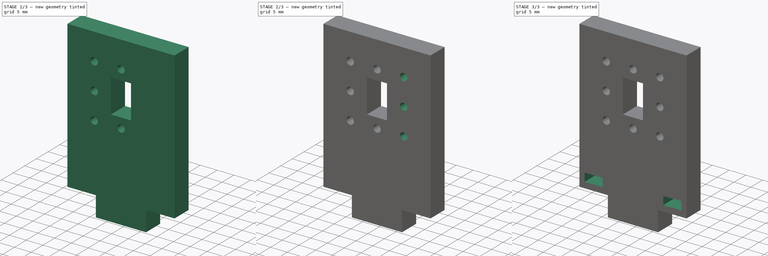
[diagram: build sequence overview — one tinted view per stage of 3, left to right]
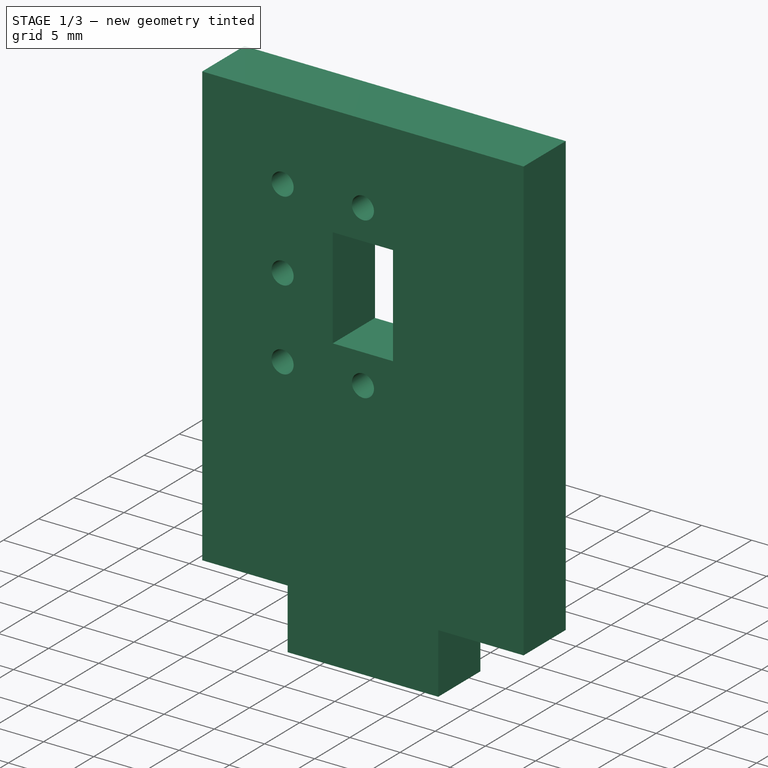
[diagram: stage 1 of 3 — iso view after this stage's code; geometry added in this stage tinted green]
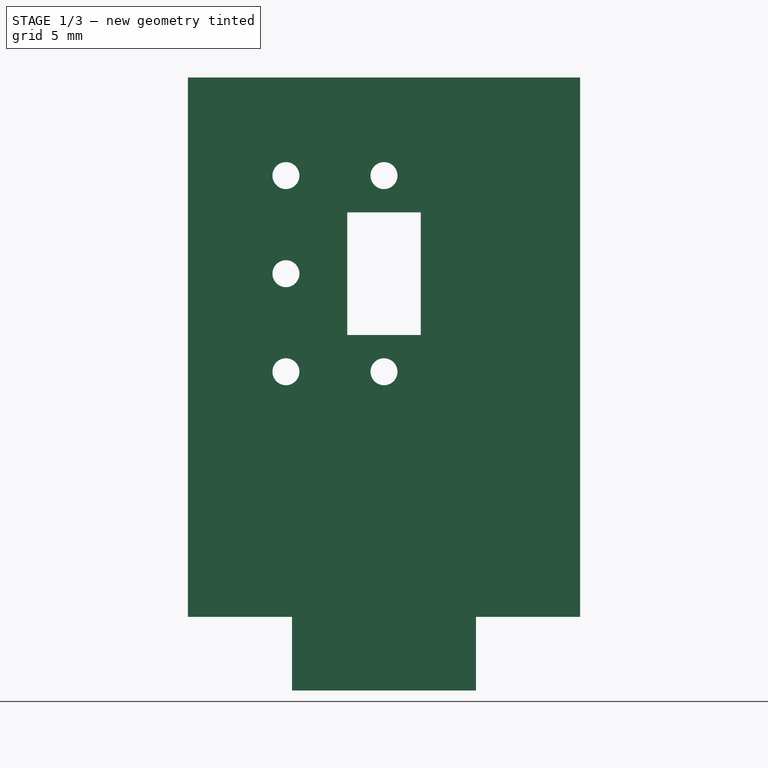
[diagram: stage 1 of 3 — front view after this stage's code; geometry added in this stage tinted green]
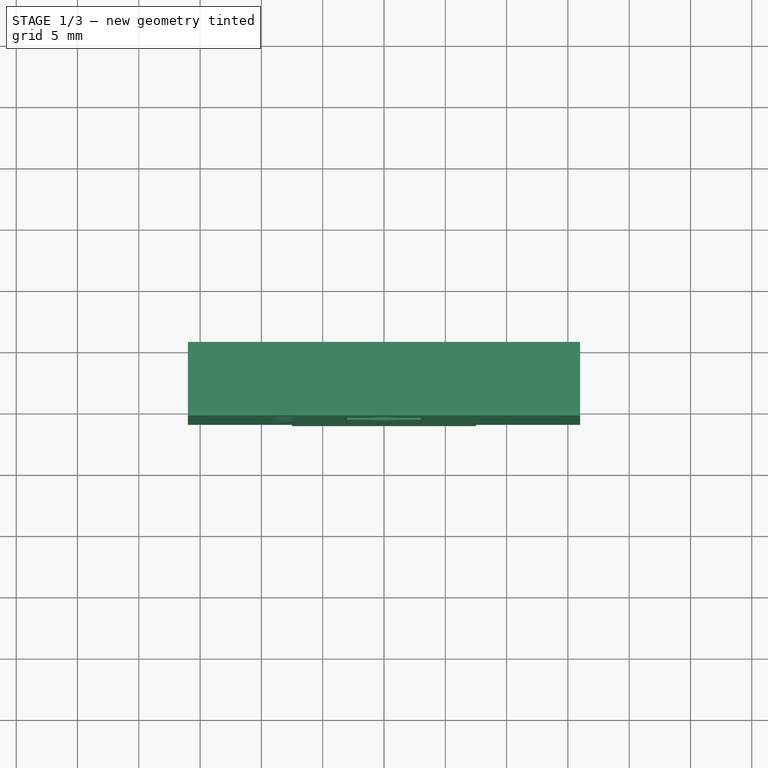
[diagram: stage 1 of 3 — top view after this stage's code; geometry added in this stage tinted green]
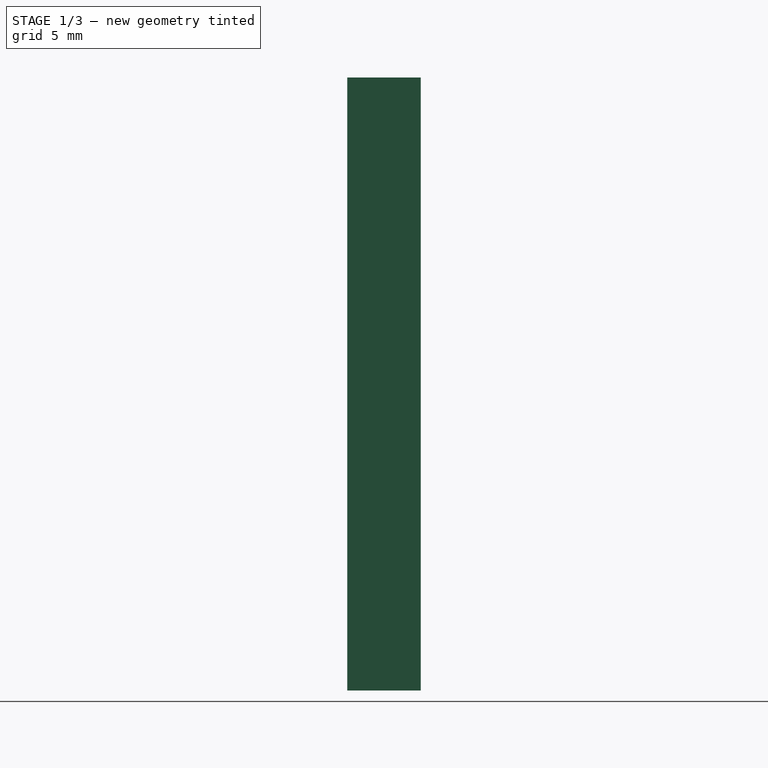
[diagram: stage 1 of 3 — right view after this stage's code; geometry added in this stage tinted green]
FCSTD DOCUMENT  (FreeCAD 0.19R24291 (Git))
Label: Support-AX12-Lidar
License: All rights reserved
LicenseURL: http://en.wikipedia.org/wiki/All_rights_reserved
objects: Sketcher::SketchObject×3, PartDesign::Pocket×2, PartDesign::Mirrored×2, PartDesign::Pad×1, PartDesign::Body×1
note: 12 computed .brp shape members not serialized (recipe doc carries the construction recipe); baked Part::Feature solids carry a one-line shape summary decoded from their .brp

FEATURE [Sketcher::SketchObject] Sketch
  FullyConstrained = true
  MapMode = 5
  Placement = pos=(0,0,0) rot=(1,0,0;1.5708rad)
  Support = -> [XZ_Plane]
  sketch-geometry (12):
    g0: LineSegment StartX=-16 StartY=-22 StartZ=0 EndX=16 EndY=-22 EndZ=0
    g1: LineSegment StartX=16 StartY=-22 StartZ=0 EndX=16 EndY=22 EndZ=0
    g2: LineSegment StartX=16 StartY=22 StartZ=0 EndX=-16 EndY=22 EndZ=0
    g3: LineSegment StartX=-16 StartY=22 StartZ=0 EndX=-16 EndY=-22 EndZ=0
    g4: LineSegment StartX=-16 StartY=-22 StartZ=0 EndX=16 EndY=22 EndZ=0
    g5: LineSegment StartX=-16 StartY=22 StartZ=0 EndX=16 EndY=-22 EndZ=0
    g6: LineSegment StartX=-7.5 StartY=-22 StartZ=0 EndX=7.5 EndY=-22 EndZ=0
    g7: LineSegment StartX=7.5 StartY=-22 StartZ=0 EndX=7.5 EndY=-28 EndZ=0
    g8: LineSegment StartX=7.5 StartY=-28 StartZ=0 EndX=-7.5 EndY=-28 EndZ=0
    g9: LineSegment StartX=-7.5 StartY=-28 StartZ=0 EndX=-7.5 EndY=-22 EndZ=0
    g10: LineSegment StartX=-16 StartY=-22 StartZ=0 EndX=-7.5 EndY=-22 EndZ=0
    g11: LineSegment StartX=7.5 StartY=-22 StartZ=0 EndX=16 EndY=-22 EndZ=0
  constraints (31):
    c: Coincident(g0,g1)
    c: Coincident(g1,g2)
    c: Coincident(g2,g3)
    c: Coincident(g3,g0)
    c: Horizontal(g0)
    c: Horizontal(g2)
    c: Vertical(g1)
    c: Vertical(g3)
    c: Coincident(g4,g0)
    c: Coincident(g4,g1)
    c: Coincident(g5,g2)
    c: Coincident(g5,g0)
    c: PointOnObject(g-1,g4)
    c: PointOnObject(g-1,g5)
    c: DistanceX(g2,g2) = 32
    c: DistanceY(g1,g1) = 44
    c: Coincident(g6,g7)
    c: Coincident(g7,g8)
    c: Coincident(g8,g9)
    c: Coincident(g9,g6)
    c: Horizontal(g8)
    c: Vertical(g7)
    c: Vertical(g9)
    c: PointOnObject(g6,g0)
    c: Symmetric(g6,g6,g-2)
    c: DistanceY(g7,g7) = 6
    c: DistanceX(g8,g8) = 15
    c: Coincident(g10,g3)
    c: Coincident(g10,g6)
    c: Coincident(g11,g7)
    c: Coincident(g11,g1)
FEATURE [PartDesign::Pad] Pad  label="Base"
  Direction = (1,1,1)
  Length = 6
  Length2 = 100
  Placement = pos=(0,0,0) rot=(1,0,0;1.5708rad)
  Profile = -> Sketch
  Type = 0
FEATURE [Sketcher::SketchObject] Sketch001
  ExternalGeometry = -> [Pad]
  FullyConstrained = true
  MapMode = 5
  Placement = pos=(0,-6,4e-15) rot=(1,0,0;1.5708rad)
  Support = -> [Pad]
  sketch-geometry (12):
    g0: LineSegment StartX=-3 StartY=1 StartZ=0 EndX=3 EndY=1 EndZ=0
    g1: LineSegment StartX=3 StartY=1 StartZ=0 EndX=3 EndY=11 EndZ=0
    g2: LineSegment StartX=3 StartY=11 StartZ=0 EndX=-3 EndY=11 EndZ=0
    g3: LineSegment StartX=-3 StartY=11 StartZ=0 EndX=-3 EndY=1 EndZ=0
    g4: LineSegment StartX=-3 StartY=11 StartZ=0 EndX=3 EndY=1 EndZ=0
    g5: LineSegment StartX=-3 StartY=1 StartZ=0 EndX=3 EndY=11 EndZ=0
    g6: GeomPoint X=0 Y=6 Z=0
    g7: Circle CenterX=0 CenterY=14 CenterZ=0 NormalX=0 NormalY=0 NormalZ=1 AngleXU=0 Radius=1.1
    g8: Circle CenterX=-8 CenterY=6 CenterZ=0 NormalX=0 NormalY=0 NormalZ=1 AngleXU=0 Radius=1.1
    g9: Circle CenterX=-8 CenterY=14 CenterZ=0 NormalX=0 NormalY=0 NormalZ=1 AngleXU=0 Radius=1.1
    g10: Circle CenterX=-8 CenterY=-2 CenterZ=0 NormalX=0 NormalY=0 NormalZ=1 AngleXU=0 Radius=1.1
    g11: Circle CenterX=0 CenterY=-2 CenterZ=0 NormalX=0 NormalY=0 NormalZ=1 AngleXU=0 Radius=1.1
  constraints (32):
    c: Coincident(g0,g1)
    c: Coincident(g1,g2)
    c: Coincident(g2,g3)
    c: Coincident(g3,g0)
    c: Horizontal(g0)
    c: Vertical(g1)
    c: Vertical(g3)
    c: DistanceY(g1,g1) = 10
    c: DistanceX(g2,g2) = 6
    c: Symmetric(g2,g1,g-2)
    c: Coincident(g4,g2)
    c: Coincident(g4,g0)
    c: Coincident(g5,g0)
    c: Coincident(g5,g1)
    c: PointOnObject(g6,g-2)
    c: PointOnObject(g6,g5)
    c: DistanceY(g6,g-3) = 16
    c: PointOnObject(g7,g-2)
    c: Radius(g7) = 1.1
    c: Equal(g7,g8)
    c: Horizontal(g6,g8)
    c: DistanceX(g8,g6) = 8
    c: Equal(g7,g9)
    c: Horizontal(g9,g7)
    c: Vertical(g9,g8)
    c: DistanceY(g8,g9) = 8
    c: PointOnObject(g11,g-2)
    c: Equal(g10,g11)
    c: Equal(g11,g8)
    c: Vertical(g10,g8)
    c: Horizontal(g10,g11)
    c: DistanceY(g11,g6) = 8
FEATURE [PartDesign::Pocket] Pocket  label="Fixation"
  BaseFeature = -> Pad
  Length = 5
  Length2 = 100
  Placement = pos=(0,0,0) rot=(1,0,0;1.5708rad)
  Profile = -> Sketch001
  Type = 1
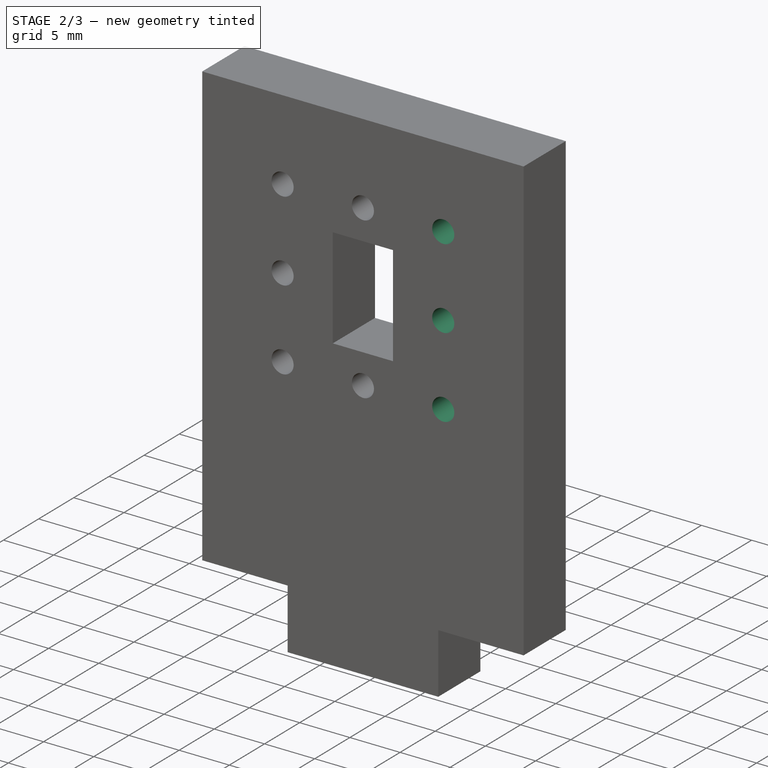
[diagram: stage 2 of 3 — iso view after this stage's code; geometry added in this stage tinted green]
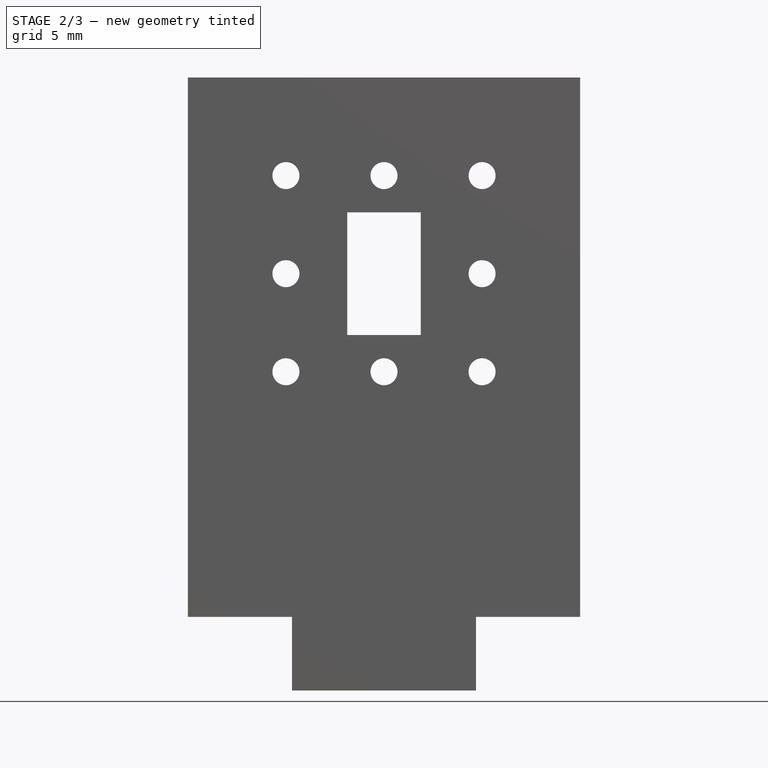
[diagram: stage 2 of 3 — front view after this stage's code; geometry added in this stage tinted green]
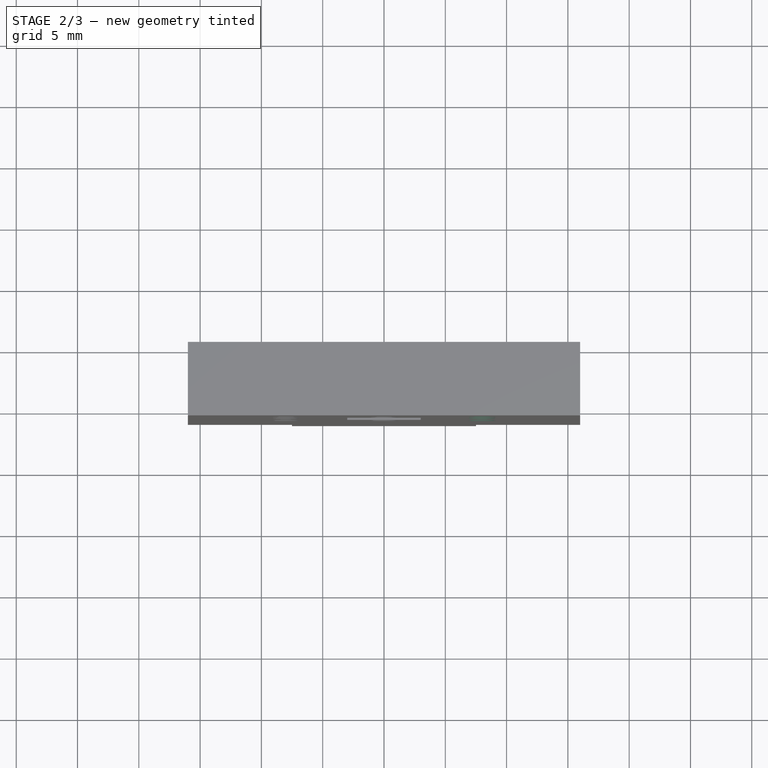
[diagram: stage 2 of 3 — top view after this stage's code; geometry added in this stage tinted green]
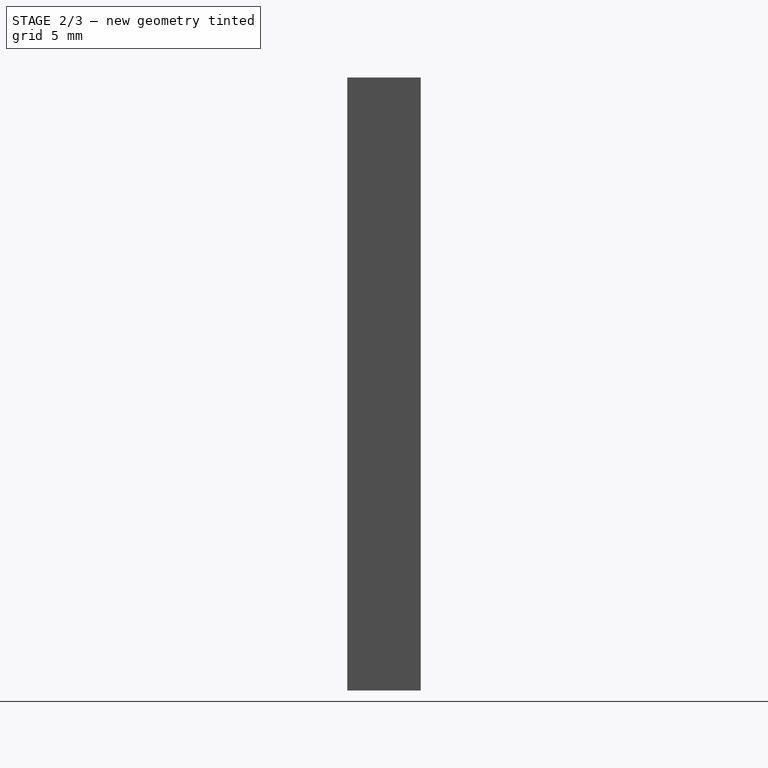
[diagram: stage 2 of 3 — right view after this stage's code; geometry added in this stage tinted green]
FEATURE [PartDesign::Mirrored] Mirrored  label="Fixation-2"
  BaseFeature = -> Pocket
  MirrorPlane = -> Sketch001 [V_Axis]
  Originals = -> [Pocket]
  Placement = pos=(0,0,0) rot=(1,0,0;1.5708rad)
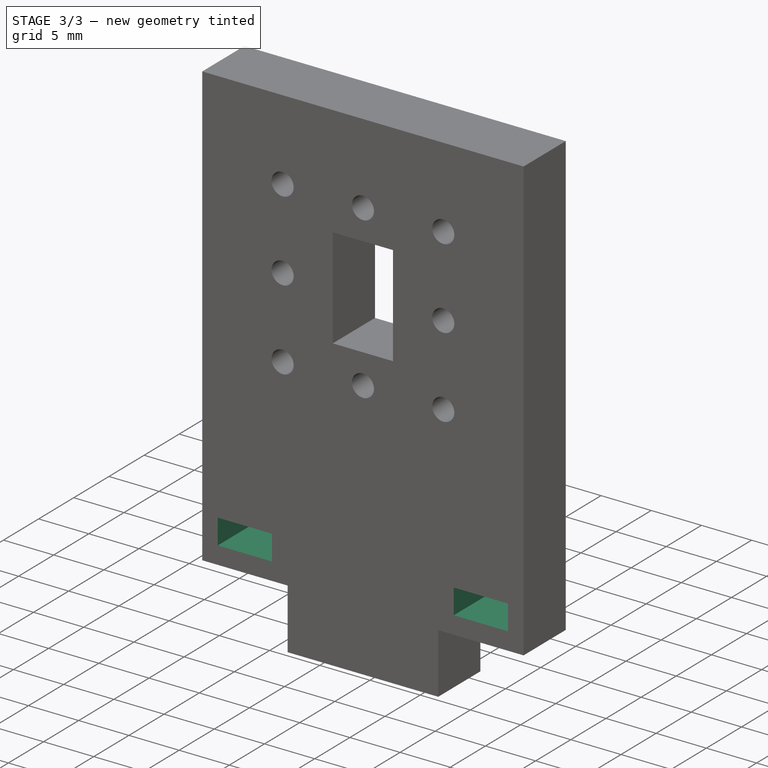
[diagram: stage 3 of 3 — iso view after this stage's code; geometry added in this stage tinted green]
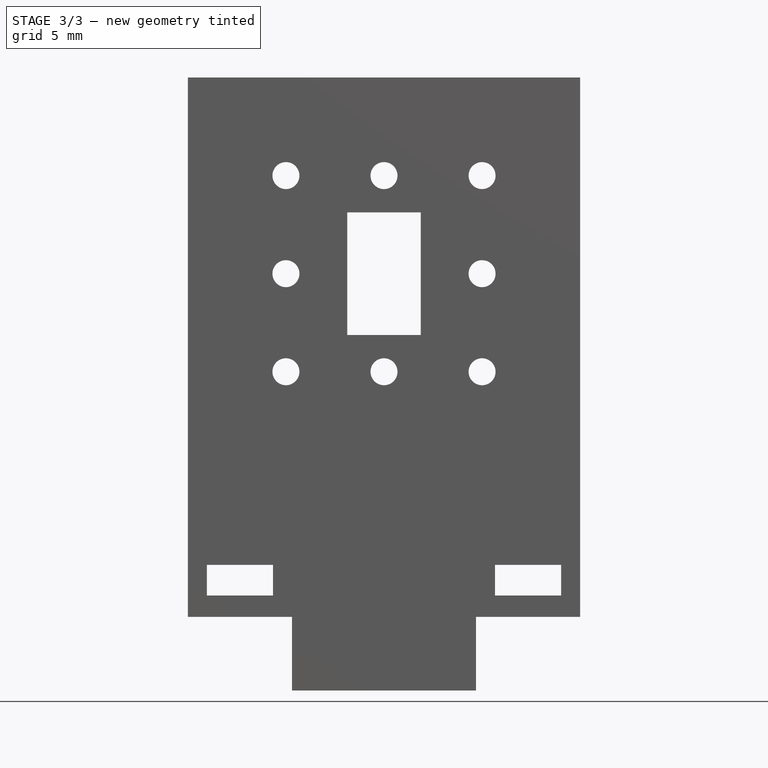
[diagram: stage 3 of 3 — front view after this stage's code; geometry added in this stage tinted green]
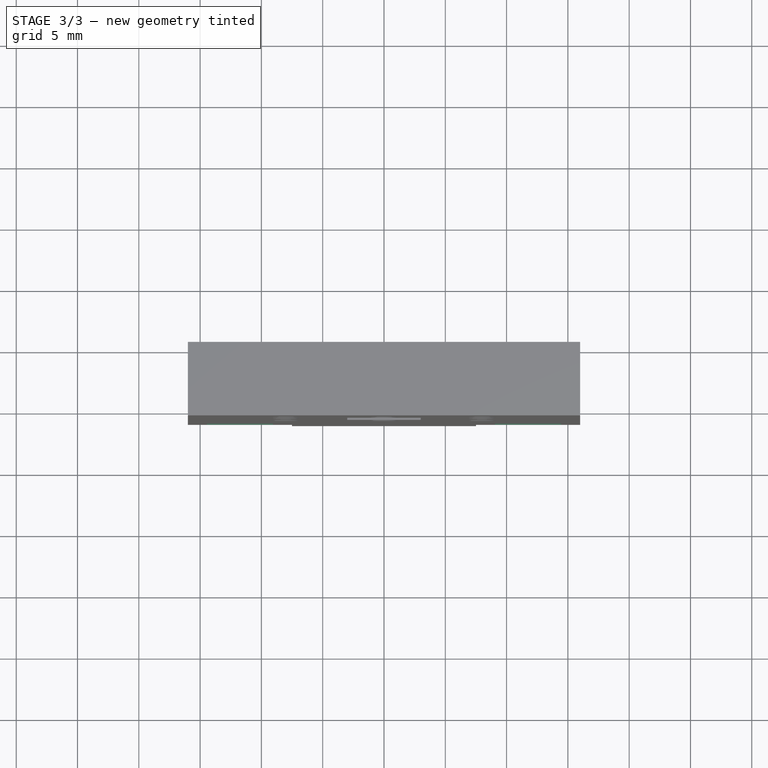
[diagram: stage 3 of 3 — top view after this stage's code; geometry added in this stage tinted green]
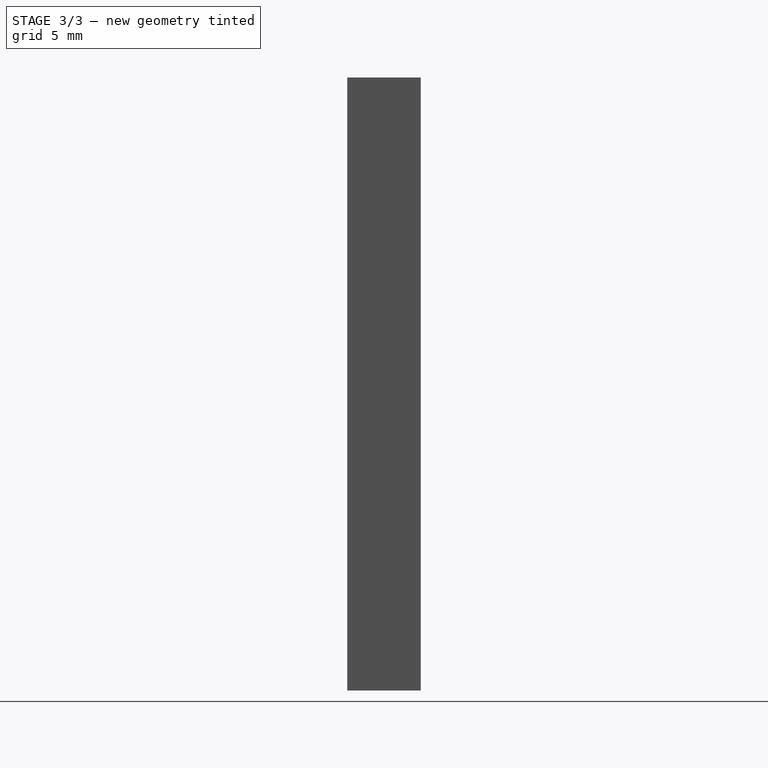
[diagram: stage 3 of 3 — right view after this stage's code; geometry added in this stage tinted green]
FEATURE [Sketcher::SketchObject] Sketch002
  ExternalGeometry = -> [Mirrored]
  FullyConstrained = true
  MapMode = 5
  Placement = pos=(0,-6,6.7e-15) rot=(1,0,0;1.5708rad)
  Support = -> [Mirrored]
  sketch-geometry (7):
    g0: LineSegment StartX=-14.45 StartY=-20.25 StartZ=0 EndX=-9.05 EndY=-20.25 EndZ=0
    g1: LineSegment StartX=-9.05 StartY=-20.25 StartZ=0 EndX=-9.05 EndY=-17.75 EndZ=0
    g2: LineSegment StartX=-9.05 StartY=-17.75 StartZ=0 EndX=-14.45 EndY=-17.75 EndZ=0
    g3: LineSegment StartX=-14.45 StartY=-17.75 StartZ=0 EndX=-14.45 EndY=-20.25 EndZ=0
    g4: LineSegment StartX=-14.45 StartY=-17.75 StartZ=0 EndX=-9.05 EndY=-20.25 EndZ=0
    g5: LineSegment StartX=-14.45 StartY=-20.25 StartZ=0 EndX=-9.05 EndY=-17.75 EndZ=0
    g6: GeomPoint X=-11.75 Y=-19 Z=0
  constraints (18):
    c: Coincident(g0,g1)
    c: Coincident(g1,g2)
    c: Coincident(g2,g3)
    c: Coincident(g3,g0)
    c: Horizontal(g0)
    c: Horizontal(g2)
    c: Vertical(g1)
    c: Vertical(g3)
    c: DistanceY(g1,g1) = 2.5
    c: DistanceX(g2,g2) = 5.4
    c: Coincident(g4,g2)
    c: Coincident(g4,g0)
    c: Coincident(g5,g0)
    c: Coincident(g5,g1)
    c: PointOnObject(g6,g5)
    c: PointOnObject(g6,g4)
    c: DistanceY(g-4,g6) = 3
    c: DistanceX(g-4,g6) = 4.25
FEATURE [PartDesign::Pocket] Pocket001  label="Logement-ecrous"
  BaseFeature = -> Mirrored
  Length = 5
  Length2 = 100
  Placement = pos=(0,0,0) rot=(1,0,0;1.5708rad)
  Profile = -> Sketch002
  Type = 1
FEATURE [PartDesign::Mirrored] Mirrored001  label="Logement-ecrous-2"
  BaseFeature = -> Pocket001
  MirrorPlane = -> Sketch002 [V_Axis]
  Originals = -> [Pocket001]
  Placement = pos=(0,0,0) rot=(1,0,0;1.5708rad)
FEATURE [PartDesign::Body] Body
  Group = -> [Sketch,Pad,Sketch001,Pocket,Mirrored,Sketch002,Pocket001,Mirrored001]
  Origin = -> Origin
  Tip = -> Mirrored001
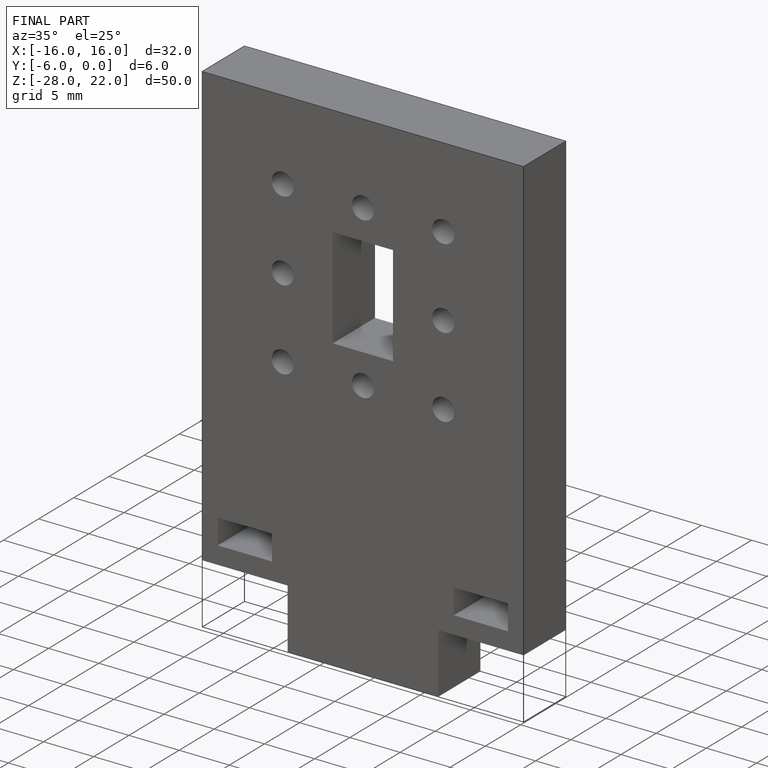
[diagram: finished part — iso view with bounding-box wireframe]
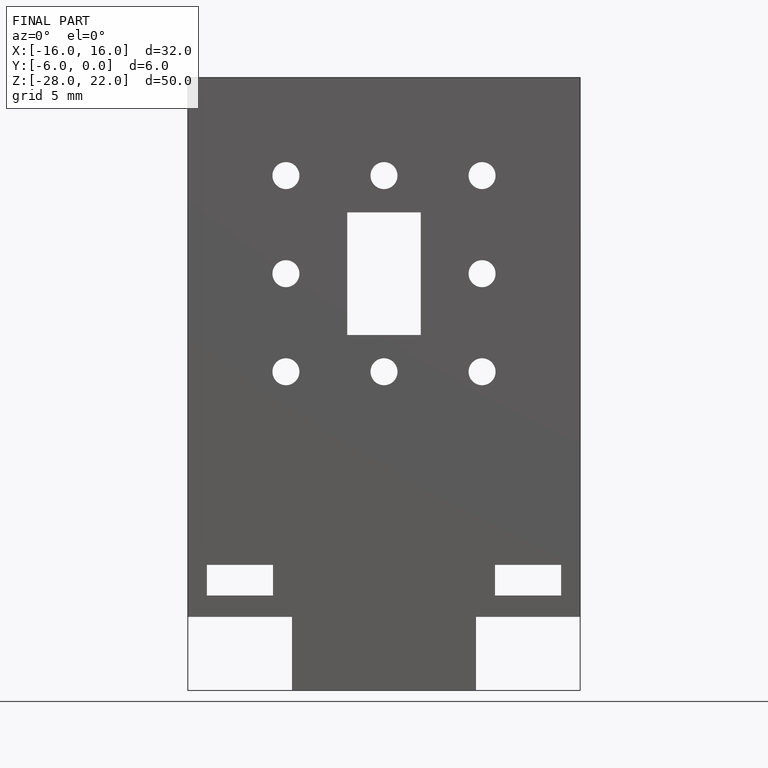
[diagram: finished part — front view with bounding-box wireframe]
